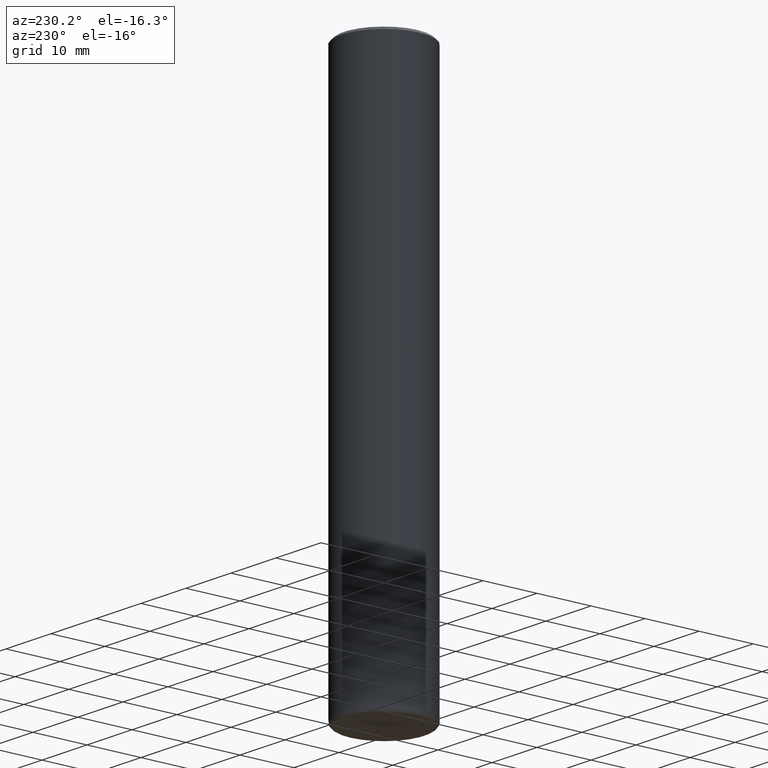
[diagram: clean part render]
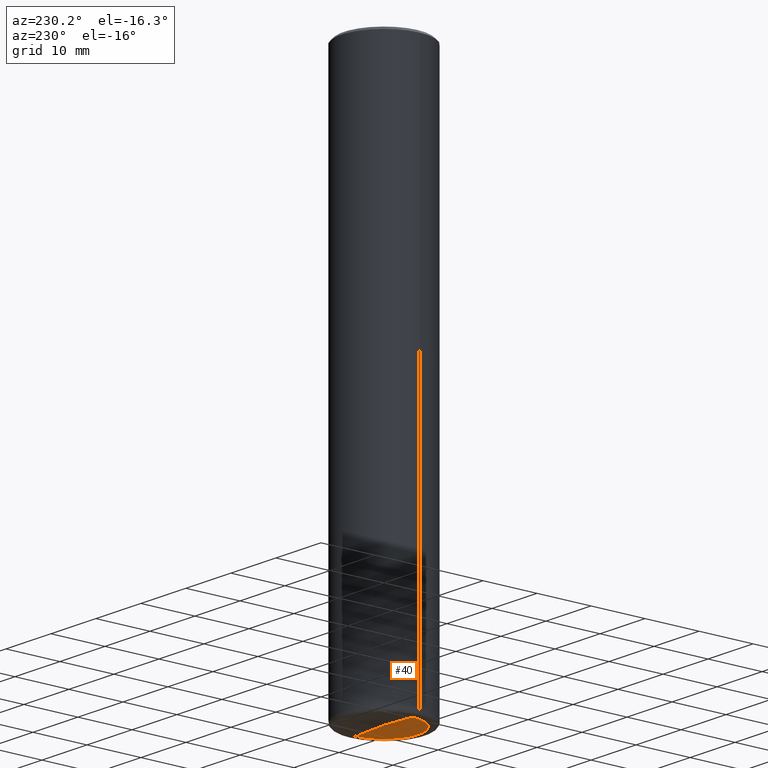
[diagram: same view with one face highlighted and labeled with its STEP entity id]
A machine part, auxiliary view. The second image highlights one B-rep face of the part: STEP entity #40.
In plain terms, the highlighted conical surface has half-angle 88 deg.
Its self-contained STEP definition (entity closure, byte-faithful):
#10 = VECTOR ( 'NONE', #282, 39.37007874015748854 ) ;
#20 = EDGE_CURVE ( 'NONE', #361, #446, #470, .T. ) ;
#25 = EDGE_LOOP ( 'NONE', ( #151, #26, #77 ) ) ;
#26 = ORIENTED_EDGE ( 'NONE', *, *, #424, .T. ) ;
#40 = ADVANCED_FACE ( 'NONE', ( #252 ), #190, .F. ) ;
#45 = CARTESIAN_POINT ( 'NONE',  ( 9.781163893102952940E-29, -1.396490976231651766E-14, -3.999709122587949750 ) ) ;
#65 = EDGE_CURVE ( 'NONE', #446, #96, #242, .T. ) ;
#77 = ORIENTED_EDGE ( 'NONE', *, *, #65, .F. ) ;
#93 = CARTESIAN_POINT ( 'NONE',  ( 9.759907823550939351E-29, -1.393456172843839092E-14, -3.991017100224690584 ) ) ;
#96 = VERTEX_POINT ( 'NONE', #187 ) ;
#112 = LINE ( 'NONE', #430, #434 ) ;
#117 = CARTESIAN_POINT ( 'NONE',  ( 9.781163893102952940E-29, -1.396490976231651766E-14, -3.999709122587949750 ) ) ;
#128 = CARTESIAN_POINT ( 'NONE',  ( -0.2489069539350491633, -1.222680179277149425E-14, -3.999709122587949750 ) ) ;
#145 = AXIS2_PLACEMENT_3D ( 'NONE', #45, #209, #175 ) ;
#151 = ORIENTED_EDGE ( 'NONE', *, *, #20, .F. ) ;
#175 = DIRECTION ( 'NONE',  ( 1.000000000000000000, -6.982962677686262766E-15, 0.000000000000000000 ) ) ;
#187 = CARTESIAN_POINT ( 'NONE',  ( 0.2489069539350491633, -1.567253542141933323E-14, -3.999709122587949750 ) ) ;
#190 = CONICAL_SURFACE ( 'NONE', #333, 0.2489069539350491633, 1.535889741755009252 ) ;
#194 = DIRECTION ( 'NONE',  ( 0.9993908270190957621, -6.978169709227544643E-15, -0.03489949670250174635 ) ) ;
#203 = CARTESIAN_POINT ( 'NONE',  ( -0.2489069539350491633, -1.222680179277149425E-14, -3.999709122587949750 ) ) ;
#209 = DIRECTION ( 'NONE',  ( -2.445468806185136597E-29, 3.491481338843145583E-15, 1.000000000000000000 ) ) ;
#217 = DIRECTION ( 'NONE',  ( 2.445468806185136597E-29, -3.491481338843145583E-15, -1.000000000000000000 ) ) ;
#242 = CIRCLE ( 'NONE', #145, 0.2489069539350491633 ) ;
#252 = FACE_OUTER_BOUND ( 'NONE', #25, .T. ) ;
#282 = DIRECTION ( 'NONE',  ( -0.9993908270190957621, 6.856857904024554104E-15, -0.03489949670250174635 ) ) ;
#333 = AXIS2_PLACEMENT_3D ( 'NONE', #117, #217, #441 ) ;
#361 = VERTEX_POINT ( 'NONE', #93 ) ;
#424 = EDGE_CURVE ( 'NONE', #361, #96, #112, .T. ) ;
#430 = CARTESIAN_POINT ( 'NONE',  ( 0.2489069539350491633, -1.567253542141933323E-14, -3.999709122587949750 ) ) ;
#434 = VECTOR ( 'NONE', #194, 39.37007874015748854 ) ;
#441 = DIRECTION ( 'NONE',  ( -1.000000000000000000, 6.982962677686262766E-15, 0.000000000000000000 ) ) ;
#446 = VERTEX_POINT ( 'NONE', #128 ) ;
#470 = LINE ( 'NONE', #203, #10 ) ;